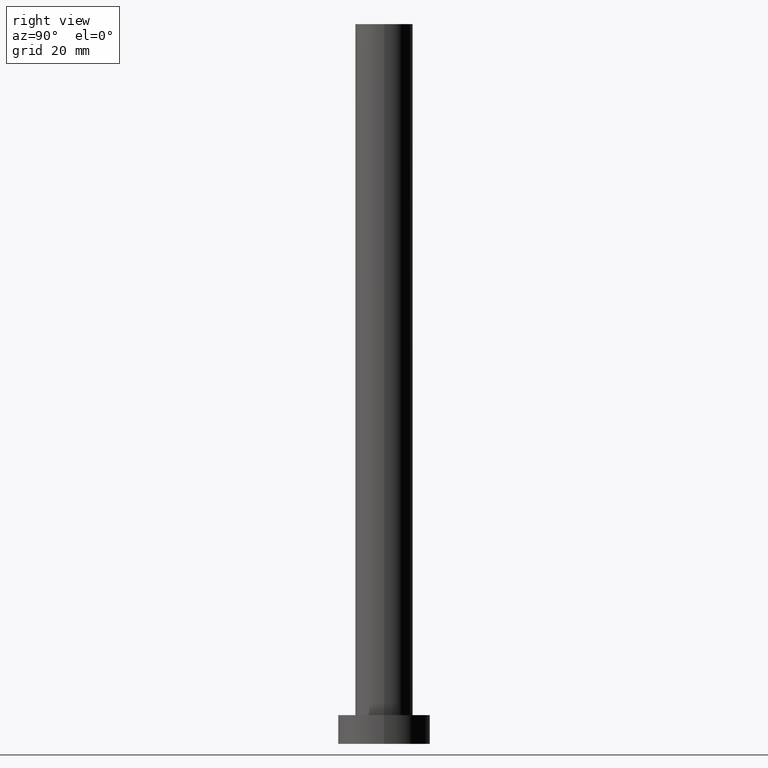
[diagram: clean part render]
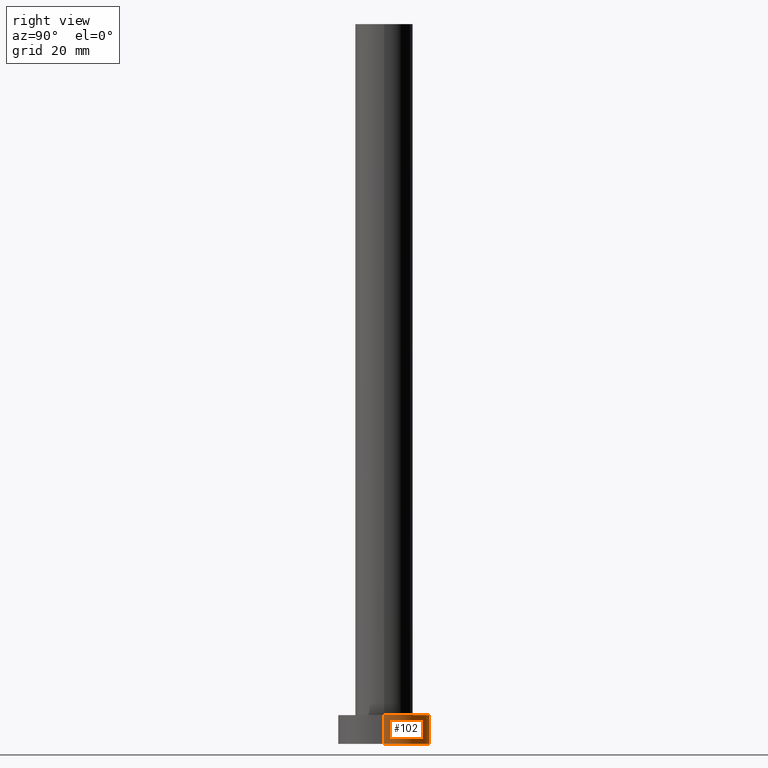
[diagram: same view with one face highlighted and labeled with its STEP entity id]
A machine part, right view. The second image highlights one B-rep face of the part: STEP entity #102.
In plain terms, the highlighted cylindrical surface (partial cylindrical patch) has radius 8 mm, axis along (-0, -0, -1).
Its self-contained STEP definition (entity closure, byte-faithful):
#5 = VERTEX_POINT ( 'NONE', #28 ) ;
#7 = DIRECTION ( 'NONE',  ( 0.000000000000000000, 0.000000000000000000, 1.000000000000000000 ) ) ;
#9 = VERTEX_POINT ( 'NONE', #167 ) ;
#11 = CARTESIAN_POINT ( 'NONE',  ( 0.000000000000000000, 0.000000000000000000, 0.000000000000000000 ) ) ;
#18 = DIRECTION ( 'NONE',  ( 0.000000000000000000, 0.000000000000000000, 1.000000000000000000 ) ) ;
#28 = CARTESIAN_POINT ( 'NONE',  ( -8.000000000000000000, 0.000000000000000000, 5.000000000000000000 ) ) ;
#30 = VERTEX_POINT ( 'NONE', #144 ) ;
#36 = FACE_OUTER_BOUND ( 'NONE', #207, .T. ) ;
#38 = DIRECTION ( 'NONE',  ( -0.000000000000000000, -0.000000000000000000, -1.000000000000000000 ) ) ;
#39 = CARTESIAN_POINT ( 'NONE',  ( 0.000000000000000000, 0.000000000000000000, 5.000000000000000000 ) ) ;
#49 = ORIENTED_EDGE ( 'NONE', *, *, #117, .F. ) ;
#53 = EDGE_CURVE ( 'NONE', #30, #9, #202, .T. ) ;
#56 = CARTESIAN_POINT ( 'NONE',  ( 8.000000000000000000, 9.797174393178825657E-16, 5.000000000000000000 ) ) ;
#58 = EDGE_CURVE ( 'NONE', #9, #91, #215, .T. ) ;
#81 = CIRCLE ( 'NONE', #135, 8.000000000000000000 ) ;
#83 = CARTESIAN_POINT ( 'NONE',  ( 0.000000000000000000, 0.000000000000000000, 5.000000000000000000 ) ) ;
#91 = VERTEX_POINT ( 'NONE', #199 ) ;
#92 = ORIENTED_EDGE ( 'NONE', *, *, #58, .T. ) ;
#96 = CARTESIAN_POINT ( 'NONE',  ( -8.000000000000000000, 0.000000000000000000, 5.000000000000000000 ) ) ;
#98 = DIRECTION ( 'NONE',  ( -0.000000000000000000, -0.000000000000000000, -1.000000000000000000 ) ) ;
#102 = ADVANCED_FACE ( 'NONE', ( #36 ), #191, .T. ) ;
#115 = AXIS2_PLACEMENT_3D ( 'NONE', #11, #7, #241 ) ;
#116 = LINE ( 'NONE', #96, #118 ) ;
#117 = EDGE_CURVE ( 'NONE', #5, #91, #116, .T. ) ;
#118 = VECTOR ( 'NONE', #98, 1000.000000000000000 ) ;
#120 = DIRECTION ( 'NONE',  ( 1.000000000000000000, 0.000000000000000000, 0.000000000000000000 ) ) ;
#130 = ORIENTED_EDGE ( 'NONE', *, *, #53, .T. ) ;
#135 = AXIS2_PLACEMENT_3D ( 'NONE', #83, #18, #120 ) ;
#144 = CARTESIAN_POINT ( 'NONE',  ( 8.000000000000000000, 9.797174393178825657E-16, 5.000000000000000000 ) ) ;
#151 = DIRECTION ( 'NONE',  ( -1.000000000000000000, 0.000000000000000000, 0.000000000000000000 ) ) ;
#157 = VECTOR ( 'NONE', #186, 1000.000000000000000 ) ;
#167 = CARTESIAN_POINT ( 'NONE',  ( 8.000000000000000000, 9.797174393178825657E-16, 0.000000000000000000 ) ) ;
#186 = DIRECTION ( 'NONE',  ( -0.000000000000000000, -0.000000000000000000, -1.000000000000000000 ) ) ;
#191 = CYLINDRICAL_SURFACE ( 'NONE', #248, 8.000000000000000000 ) ;
#199 = CARTESIAN_POINT ( 'NONE',  ( -8.000000000000000000, 0.000000000000000000, 0.000000000000000000 ) ) ;
#202 = LINE ( 'NONE', #56, #157 ) ;
#207 = EDGE_LOOP ( 'NONE', ( #235, #130, #92, #49 ) ) ;
#215 = CIRCLE ( 'NONE', #115, 8.000000000000000000 ) ;
#230 = EDGE_CURVE ( 'NONE', #30, #5, #81, .T. ) ;
#235 = ORIENTED_EDGE ( 'NONE', *, *, #230, .F. ) ;
#241 = DIRECTION ( 'NONE',  ( 1.000000000000000000, 0.000000000000000000, 0.000000000000000000 ) ) ;
#248 = AXIS2_PLACEMENT_3D ( 'NONE', #39, #38, #151 ) ;